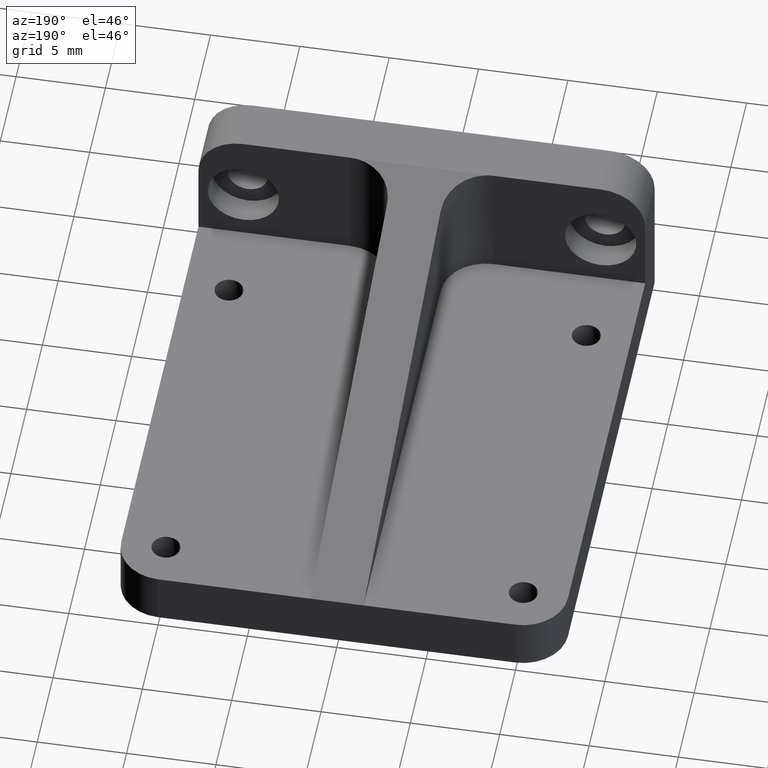
[diagram: clean part render]
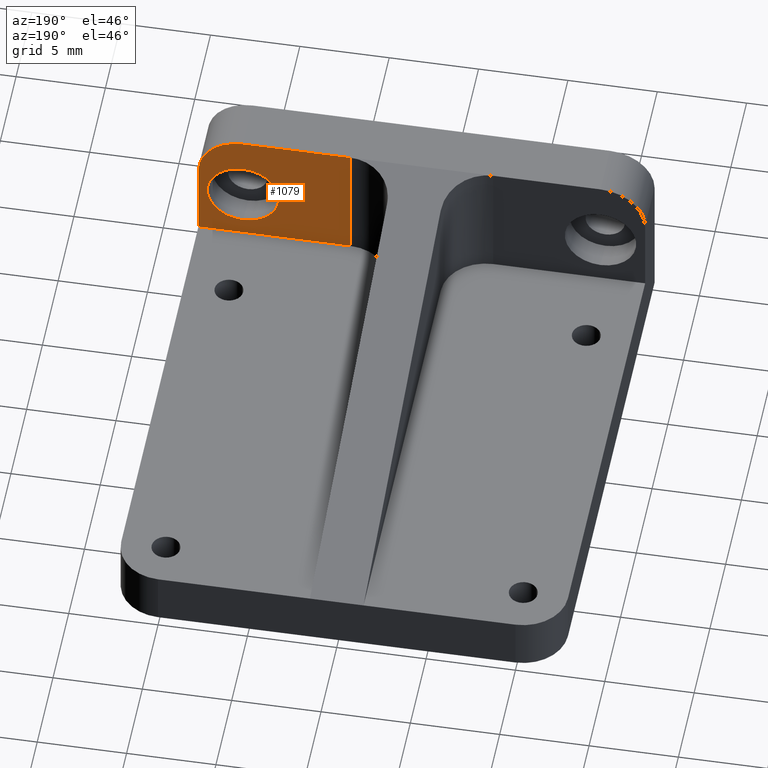
[diagram: same view with one face highlighted and labeled with its STEP entity id]
A machine part, auxiliary view. The second image highlights one B-rep face of the part: STEP entity #1079.
In plain terms, the highlighted planar face has unit normal (-0, -1, 0).
Its self-contained STEP definition (entity closure, byte-faithful):
#17 = CARTESIAN_POINT ( 'NONE',  ( 4.000000000000003553, 3.000000000000000000, 10.00000000000000000 ) ) ;
#46 = ORIENTED_EDGE ( 'NONE', *, *, #1230, .T. ) ;
#91 = VERTEX_POINT ( 'NONE', #439 ) ;
#104 = DIRECTION ( 'NONE',  ( 0.0000000000000000000, 0.0000000000000000000, 1.000000000000000000 ) ) ;
#117 = DIRECTION ( 'NONE',  ( 0.0000000000000000000, 0.0000000000000000000, 1.000000000000000000 ) ) ;
#123 = CARTESIAN_POINT ( 'NONE',  ( 4.000000000000003553, 3.000000000000000444, 10.00000000000000178 ) ) ;
#146 = DIRECTION ( 'NONE',  ( 3.942553354492745133E-17, 1.000000000000000000, 0.0000000000000000000 ) ) ;
#150 = VERTEX_POINT ( 'NONE', #920 ) ;
#196 = LINE ( 'NONE', #123, #242 ) ;
#225 = CARTESIAN_POINT ( 'NONE',  ( 10.00000000000000000, 3.000000000000000000, 7.500000000000000000 ) ) ;
#226 = EDGE_CURVE ( 'NONE', #228, #577, #331, .T. ) ;
#228 = VERTEX_POINT ( 'NONE', #737 ) ;
#231 = DIRECTION ( 'NONE',  ( 1.000000000000000000, 0.0000000000000000000, 0.0000000000000000000 ) ) ;
#242 = VECTOR ( 'NONE', #117, 1000.000000000000000 ) ;
#289 = DIRECTION ( 'NONE',  ( 0.0000000000000000000, 0.0000000000000000000, 1.000000000000000000 ) ) ;
#303 = PLANE ( 'NONE',  #447 ) ;
#321 = CIRCLE ( 'NONE', #1028, 1.999999999999999112 ) ;
#331 = LINE ( 'NONE', #1114, #1149 ) ;
#333 = CARTESIAN_POINT ( 'NONE',  ( 12.50000000000000000, 3.000000000000000000, -29.15475947422650904 ) ) ;
#341 = ORIENTED_EDGE ( 'NONE', *, *, #747, .T. ) ;
#372 = VERTEX_POINT ( 'NONE', #1002 ) ;
#382 = CIRCLE ( 'NONE', #965, 1.999999999999999112 ) ;
#391 = FACE_OUTER_BOUND ( 'NONE', #1143, .T. ) ;
#439 = CARTESIAN_POINT ( 'NONE',  ( 10.00000000000000000, 3.000000000000000000, 7.999999999999996447 ) ) ;
#447 = AXIS2_PLACEMENT_3D ( 'NONE', #684, #779, #1170 ) ;
#499 = EDGE_CURVE ( 'NONE', #726, #602, #781, .T. ) ;
#574 = ORIENTED_EDGE ( 'NONE', *, *, #654, .T. ) ;
#577 = VERTEX_POINT ( 'NONE', #17 ) ;
#602 = VERTEX_POINT ( 'NONE', #1062 ) ;
#611 = EDGE_CURVE ( 'NONE', #150, #91, #321, .T. ) ;
#624 = CARTESIAN_POINT ( 'NONE',  ( 12.50000000000000000, 3.000000000000000000, 3.000000000000000000 ) ) ;
#628 = ORIENTED_EDGE ( 'NONE', *, *, #611, .F. ) ;
#653 = CARTESIAN_POINT ( 'NONE',  ( 10.00000000000000000, 3.000000000000000000, 5.999999999999997335 ) ) ;
#654 = EDGE_CURVE ( 'NONE', #372, #577, #196, .T. ) ;
#666 = VECTOR ( 'NONE', #833, 1000.000000000000000 ) ;
#680 = DIRECTION ( 'NONE',  ( -0.0000000000000000000, 1.000000000000000000, -0.0000000000000000000 ) ) ;
#684 = CARTESIAN_POINT ( 'NONE',  ( 12.50000000000000000, 3.000000000000000000, -29.15475947422650904 ) ) ;
#690 = FACE_BOUND ( 'NONE', #860, .T. ) ;
#726 = VERTEX_POINT ( 'NONE', #624 ) ;
#737 = CARTESIAN_POINT ( 'NONE',  ( 10.00000000000000000, 3.000000000000000000, 10.00000000000000000 ) ) ;
#740 = VECTOR ( 'NONE', #1217, 1000.000000000000000 ) ;
#747 = EDGE_CURVE ( 'NONE', #228, #602, #893, .T. ) ;
#779 = DIRECTION ( 'NONE',  ( -3.942553354492745133E-17, -1.000000000000000000, 0.0000000000000000000 ) ) ;
#781 = LINE ( 'NONE', #333, #666 ) ;
#820 = ORIENTED_EDGE ( 'NONE', *, *, #226, .F. ) ;
#833 = DIRECTION ( 'NONE',  ( -0.0000000000000000000, -0.0000000000000000000, 1.000000000000000000 ) ) ;
#842 = AXIS2_PLACEMENT_3D ( 'NONE', #225, #146, #231 ) ;
#855 = EDGE_CURVE ( 'NONE', #91, #150, #382, .T. ) ;
#860 = EDGE_LOOP ( 'NONE', ( #1209, #628 ) ) ;
#893 = CIRCLE ( 'NONE', #842, 2.500000000000000444 ) ;
#907 = CARTESIAN_POINT ( 'NONE',  ( 12.50000000000000000, 3.000000000000000000, 3.000000000000002665 ) ) ;
#920 = CARTESIAN_POINT ( 'NONE',  ( 10.00000000000000000, 3.000000000000000000, 3.999999999999997335 ) ) ;
#946 = DIRECTION ( 'NONE',  ( -0.0000000000000000000, 1.000000000000000000, -0.0000000000000000000 ) ) ;
#965 = AXIS2_PLACEMENT_3D ( 'NONE', #653, #946, #289 ) ;
#1002 = CARTESIAN_POINT ( 'NONE',  ( 4.000000000000003553, 3.000000000000000444, 3.000000000000002665 ) ) ;
#1028 = AXIS2_PLACEMENT_3D ( 'NONE', #1166, #680, #104 ) ;
#1062 = CARTESIAN_POINT ( 'NONE',  ( 12.50000000000000000, 3.000000000000000000, 7.500000000000000000 ) ) ;
#1079 = ADVANCED_FACE ( 'NONE', ( #690, #391 ), #303, .F. ) ;
#1114 = CARTESIAN_POINT ( 'NONE',  ( 12.50000000000000000, 3.000000000000000000, 10.00000000000000000 ) ) ;
#1143 = EDGE_LOOP ( 'NONE', ( #820, #341, #1236, #46, #574 ) ) ;
#1149 = VECTOR ( 'NONE', #1200, 1000.000000000000000 ) ;
#1166 = CARTESIAN_POINT ( 'NONE',  ( 10.00000000000000000, 3.000000000000000000, 5.999999999999997335 ) ) ;
#1170 = DIRECTION ( 'NONE',  ( 1.000000000000000000, -3.942553354492745133E-17, 0.0000000000000000000 ) ) ;
#1193 = LINE ( 'NONE', #907, #740 ) ;
#1200 = DIRECTION ( 'NONE',  ( -1.000000000000000000, -0.0000000000000000000, -0.0000000000000000000 ) ) ;
#1209 = ORIENTED_EDGE ( 'NONE', *, *, #855, .F. ) ;
#1217 = DIRECTION ( 'NONE',  ( -1.000000000000000000, 3.942553354492745133E-17, 0.0000000000000000000 ) ) ;
#1230 = EDGE_CURVE ( 'NONE', #726, #372, #1193, .T. ) ;
#1236 = ORIENTED_EDGE ( 'NONE', *, *, #499, .F. ) ;